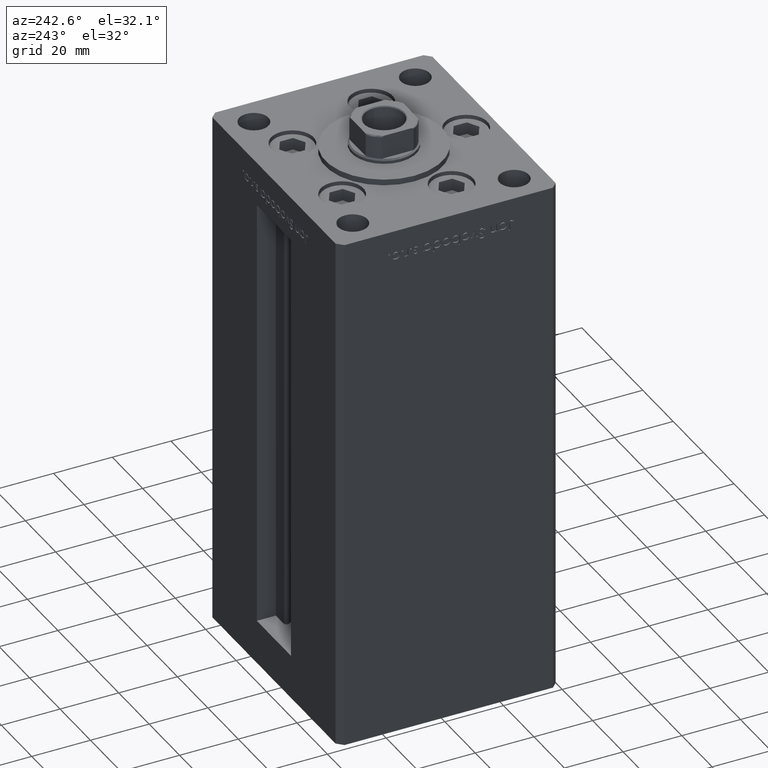
[diagram: clean part render]
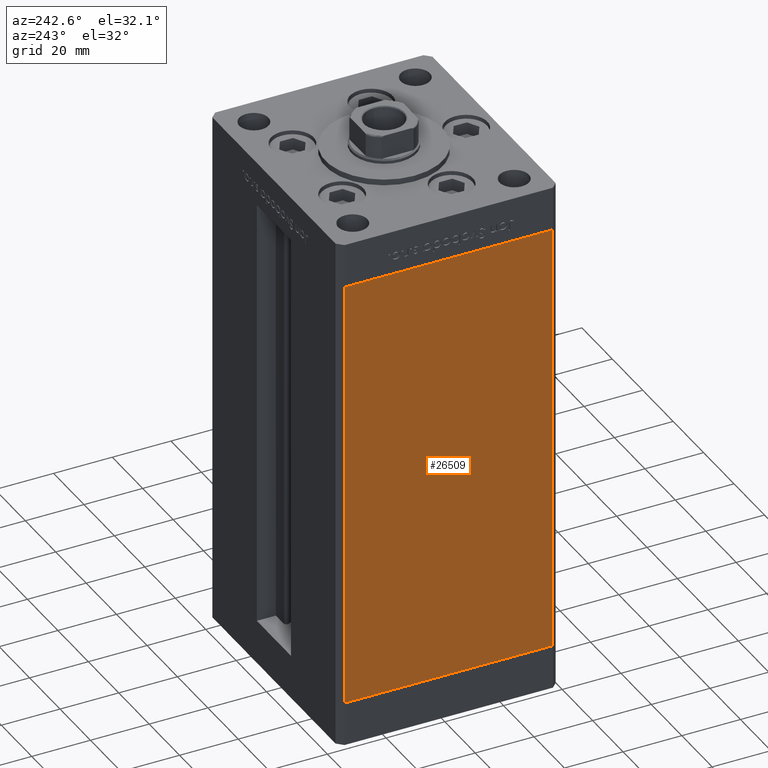
[diagram: same view with one face highlighted and labeled with its STEP entity id]
A machine part, auxiliary view. The second image highlights one B-rep face of the part: STEP entity #26509.
In plain terms, the highlighted planar face has unit normal (1, 0, 0).
Its self-contained STEP definition (entity closure, byte-faithful):
#2393 = VERTEX_POINT ( 'NONE', #45871 ) ;
#4399 = VECTOR ( 'NONE', #31172, 1000.000000000000000 ) ;
#5363 = EDGE_CURVE ( 'NONE', #51330, #2393, #15356, .T. ) ;
#6931 = DIRECTION ( 'NONE',  ( 2.931927001650941360E-16, -1.000000000000000000, 0.000000000000000000 ) ) ;
#7290 = EDGE_CURVE ( 'NONE', #49982, #10262, #26179, .T. ) ;
#8876 = CARTESIAN_POINT ( 'NONE',  ( -42.50000000000000711, 35.50000000000001421, 0.000000000000000000 ) ) ;
#9526 = ORIENTED_EDGE ( 'NONE', *, *, #14949, .T. ) ;
#10174 = FACE_OUTER_BOUND ( 'NONE', #44173, .T. ) ;
#10262 = VERTEX_POINT ( 'NONE', #41668 ) ;
#11644 = ORIENTED_EDGE ( 'NONE', *, *, #45875, .F. ) ;
#12750 = CARTESIAN_POINT ( 'NONE',  ( -42.50000000000000711, 35.50000000000001421, 148.5000000000000000 ) ) ;
#14513 = CARTESIAN_POINT ( 'NONE',  ( -42.49999999999998579, -35.50000000000000711, 148.5000000000000000 ) ) ;
#14949 = EDGE_CURVE ( 'NONE', #10262, #2393, #29963, .T. ) ;
#15356 = LINE ( 'NONE', #43805, #4399 ) ;
#16611 = LINE ( 'NONE', #50982, #44983 ) ;
#20683 = VECTOR ( 'NONE', #24979, 1000.000000000000000 ) ;
#23704 = CARTESIAN_POINT ( 'NONE',  ( -42.50000000000000711, 35.50000000000001421, 148.5000000000000000 ) ) ;
#24979 = DIRECTION ( 'NONE',  ( 2.931927001650941360E-16, -1.000000000000000000, 0.000000000000000000 ) ) ;
#25125 = AXIS2_PLACEMENT_3D ( 'NONE', #25485, #42319, #29684 ) ;
#25485 = CARTESIAN_POINT ( 'NONE',  ( -42.50000000000000711, 35.50000000000001421, 148.5000000000000000 ) ) ;
#26179 = LINE ( 'NONE', #23704, #44005 ) ;
#26509 = ADVANCED_FACE ( 'NONE', ( #10174 ), #38117, .F. ) ;
#29684 = DIRECTION ( 'NONE',  ( -2.931927001650941360E-16, 1.000000000000000000, 0.000000000000000000 ) ) ;
#29963 = LINE ( 'NONE', #8876, #20683 ) ;
#31172 = DIRECTION ( 'NONE',  ( -0.000000000000000000, -0.000000000000000000, -1.000000000000000000 ) ) ;
#38117 = PLANE ( 'NONE',  #25125 ) ;
#38152 = ORIENTED_EDGE ( 'NONE', *, *, #5363, .F. ) ;
#38557 = DIRECTION ( 'NONE',  ( -0.000000000000000000, -0.000000000000000000, -1.000000000000000000 ) ) ;
#41668 = CARTESIAN_POINT ( 'NONE',  ( -42.50000000000000711, 35.50000000000001421, 0.000000000000000000 ) ) ;
#42319 = DIRECTION ( 'NONE',  ( 1.000000000000000000, 2.931927001650941360E-16, -0.000000000000000000 ) ) ;
#43805 = CARTESIAN_POINT ( 'NONE',  ( -42.49999999999998579, -35.50000000000000711, 148.5000000000000000 ) ) ;
#44005 = VECTOR ( 'NONE', #38557, 1000.000000000000000 ) ;
#44173 = EDGE_LOOP ( 'NONE', ( #9526, #38152, #11644, #46424 ) ) ;
#44983 = VECTOR ( 'NONE', #6931, 1000.000000000000000 ) ;
#45871 = CARTESIAN_POINT ( 'NONE',  ( -42.49999999999998579, -35.50000000000000711, 0.000000000000000000 ) ) ;
#45875 = EDGE_CURVE ( 'NONE', #49982, #51330, #16611, .T. ) ;
#46424 = ORIENTED_EDGE ( 'NONE', *, *, #7290, .T. ) ;
#49982 = VERTEX_POINT ( 'NONE', #12750 ) ;
#50982 = CARTESIAN_POINT ( 'NONE',  ( -42.50000000000000711, 35.50000000000001421, 148.5000000000000000 ) ) ;
#51330 = VERTEX_POINT ( 'NONE', #14513 ) ;